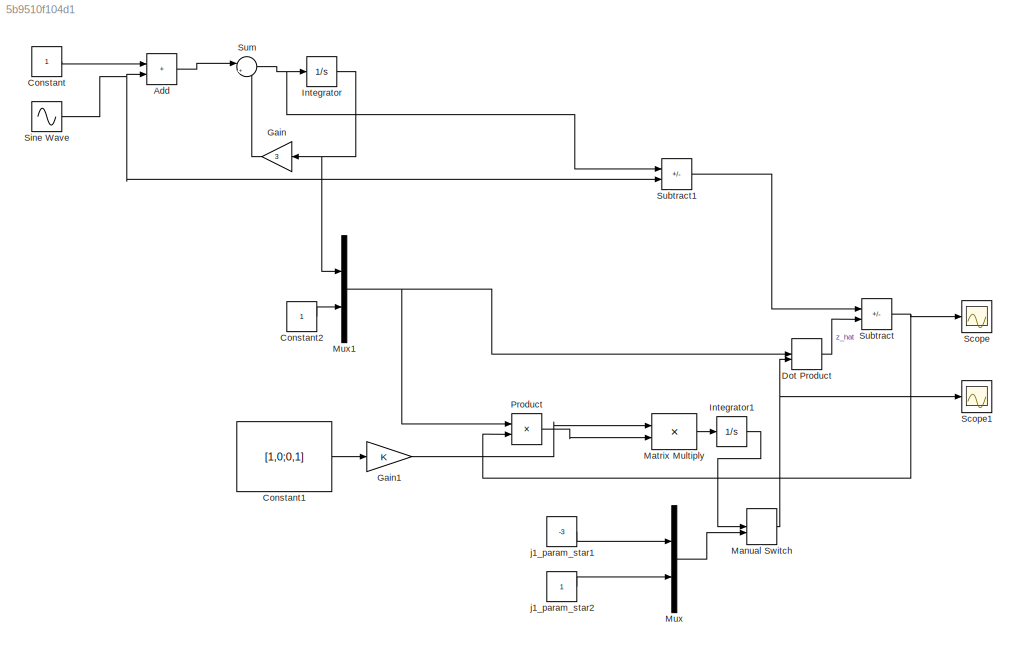
MODEL slx_5b9510f104d1
KIND model
CONFIG AbsTol = auto
CONFIG EnableMultiTasking = off
CONFIG FixedStep = auto
CONFIG MaxStep = auto
CONFIG MinStep = auto
CONFIG RelTol = 1e-3
CONFIG SampleTimeConstraint = Unconstrained
CONFIG SolverName = VariableStepAuto
CONFIG StartTime = 0.0
CONFIG StopTime = 1000.0
BLOCK [Sum] Add
  IconShape = rectangular
  Ports = [2, 1]
BLOCK [Constant] Constant
BLOCK [Constant] Constant1
  Value = [1,0;0,1]
BLOCK [Constant] Constant2
BLOCK [DotProduct] Dot Product
  OutDataTypeStr = Inherit: Inherit via internal rule
BLOCK [Gain] Gain
  Gain = 3
BLOCK [Gain] Gain1
BLOCK [Integrator] Integrator
  Ports = [1, 1]
BLOCK [Integrator] Integrator1
  InitialCondition = [0;0]
  Ports = [1, 1]
BLOCK [ManualSwitch] Manual Switch
  CurrentSetting = 0
BLOCK [Product] Matrix Multiply
  Multiplication = Matrix(*)
  Ports = [2, 1]
BLOCK [Mux] Mux
  DisplayOption = bar
  Inputs = 2
  Ports = [2, 1]
BLOCK [Mux] Mux1
  DisplayOption = bar
  Inputs = 2
  Ports = [2, 1]
BLOCK [Product] Product
  Ports = [2, 1]
BLOCK [Scope] Scope
  Floating = off
  NumInputPorts = 1
  Ports = [1]
  ScopeSpecificationString = Simulink.scopes.TimeScopeBlockCfg('CurrentConfiguration', extmgr.ConfigurationSet(extmgr.Configuration('Core','General UI',true),extmgr.Configuration('Core','Source UI',true),extmgr.Configuration('Sources','WiredSimulink',true),extmgr.Configuration('Visuals','Time Domain',true,'SerializedDisplays',{struct('MinYLimReal','-0.00000000000000014','MaxYLimReal','0.00000000000000014','YLabelReal','','Min...<+1424ch>
BLOCK [Scope] Scope1
  Floating = off
  NumInputPorts = 1
  Ports = [1]
  ScopeSpecificationString = Simulink.scopes.TimeScopeBlockCfg('CurrentConfiguration', extmgr.ConfigurationSet(extmgr.Configuration('Core','General UI',true),extmgr.Configuration('Core','Source UI',true),extmgr.Configuration('Sources','WiredSimulink',true,'DataLoggingVariableName','ScopeData1'),extmgr.Configuration('Visuals','Time Domain',true,'SerializedDisplays',{struct('MinYLimReal','-3.5','MaxYLimReal','1.5','YLabelReal',...<+1368ch>
BLOCK [Sin] Sine Wave
  Frequency = 2
  Ports = [0, 1]
  SampleTime = 0
BLOCK [Sum] Subtract
  IconShape = rectangular
  Inputs = +-
  Ports = [2, 1]
BLOCK [Sum] Subtract1
  IconShape = rectangular
  Inputs = +-
  Ports = [2, 1]
BLOCK [Sum] Sum
  Inputs = |+-
  Ports = [2, 1]
BLOCK [Constant] j1_param_star1
  Value = -3
BLOCK [Constant] j1_param_star2
LINE Add:1 -> Sum:1
LINE Constant1:1 -> Gain1:1
LINE Constant2:1 -> Mux1:2
LINE Constant:1 -> Add:1
LINE Dot Product:1 -> Subtract:2
LINE Gain1:1 -> Matrix Multiply:1
LINE Gain:1 -> Sum:2
LINE Integrator1:1 -> Manual Switch:1
NET Integrator:1 -> Gain:1, Mux1:1
NET Manual Switch:1 -> Dot Product:2, Scope1:1
LINE Matrix Multiply:1 -> Integrator1:1
NET Mux1:1 -> Dot Product:1, Product:1
LINE Mux:1 -> Manual Switch:2
LINE Product:1 -> Matrix Multiply:2
NET Sine Wave:1 -> Add:2, Subtract1:2
LINE Subtract1:1 -> Subtract:1
NET Subtract:1 -> Product:2, Scope:1
NET Sum:1 -> Integrator:1, Subtract1:1
LINE j1_param_star1:1 -> Mux:1
LINE j1_param_star2:1 -> Mux:2
note: NET lines group one-source signal fan-out (src -> all destinations, sorted); 1:1 wires keep LINE
